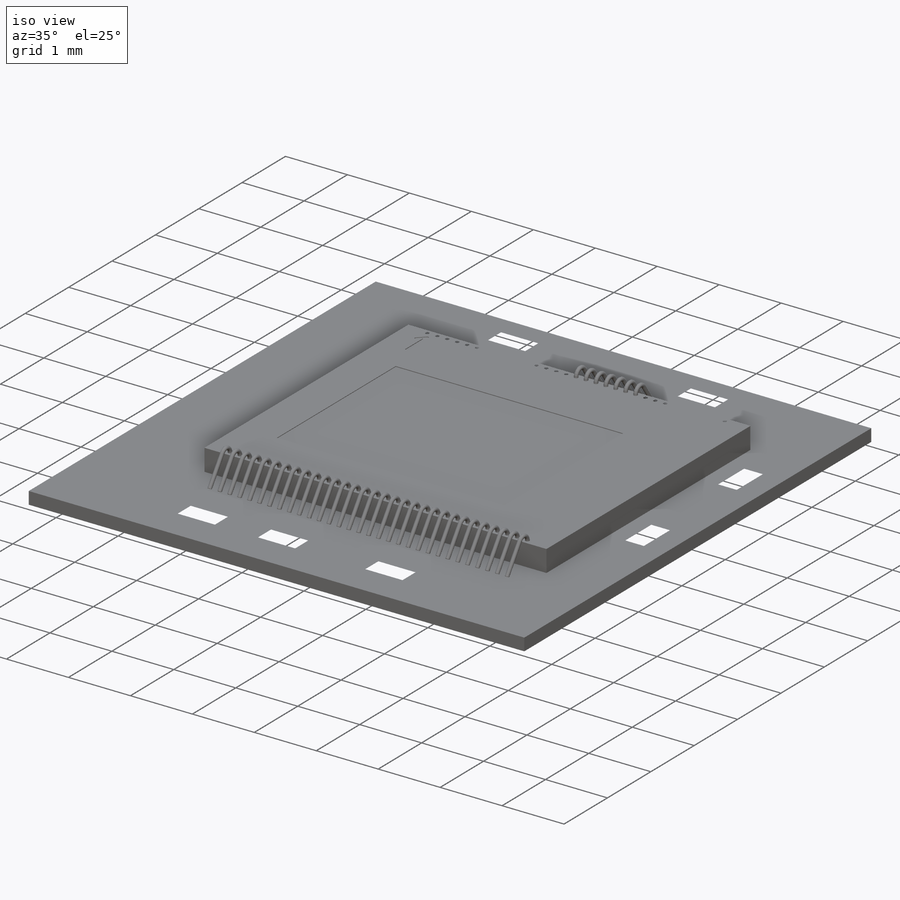
[diagram: iso view]
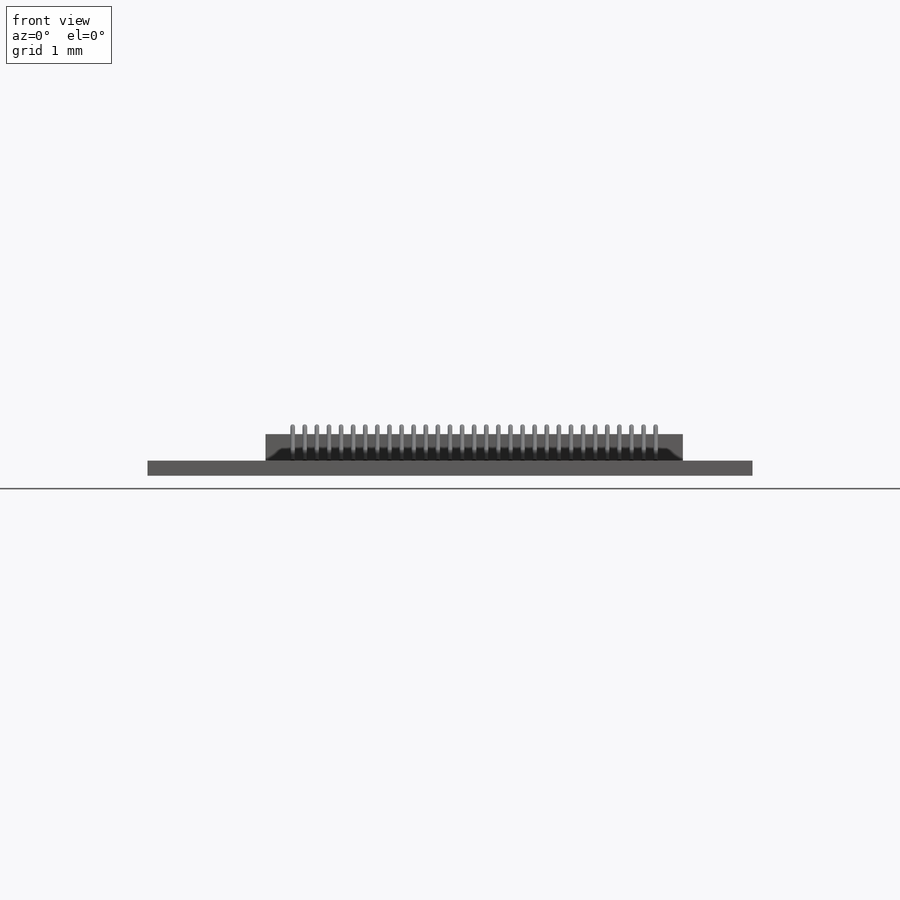
[diagram: front view]
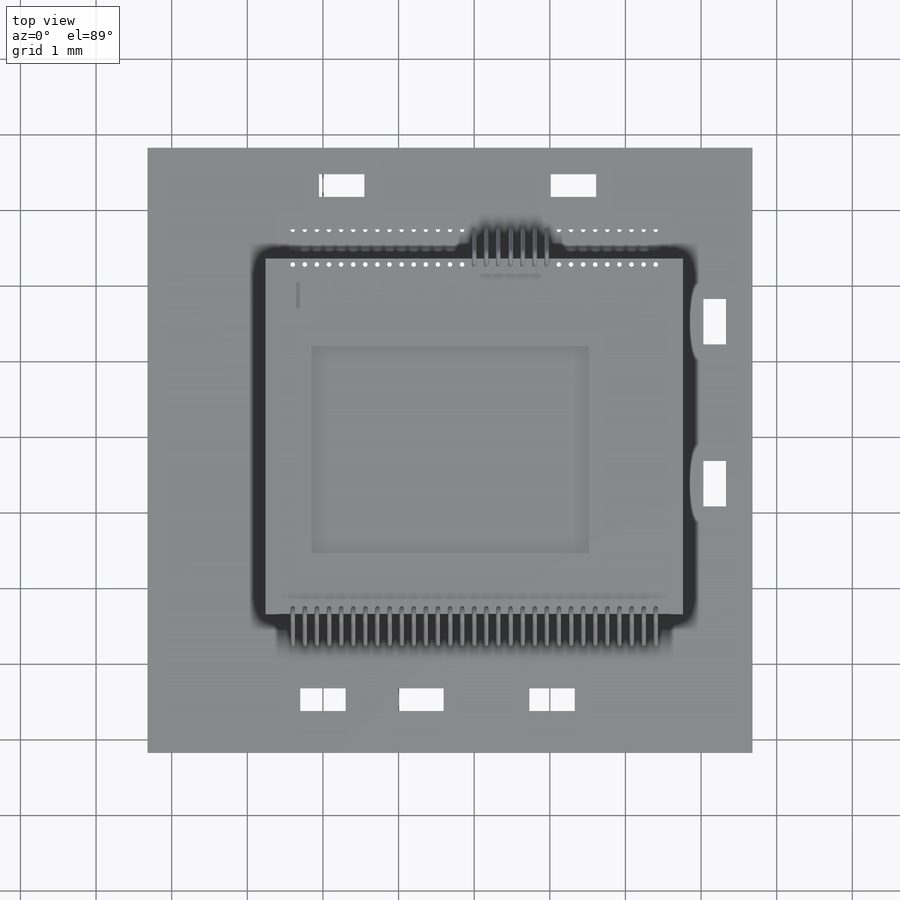
[diagram: top view]
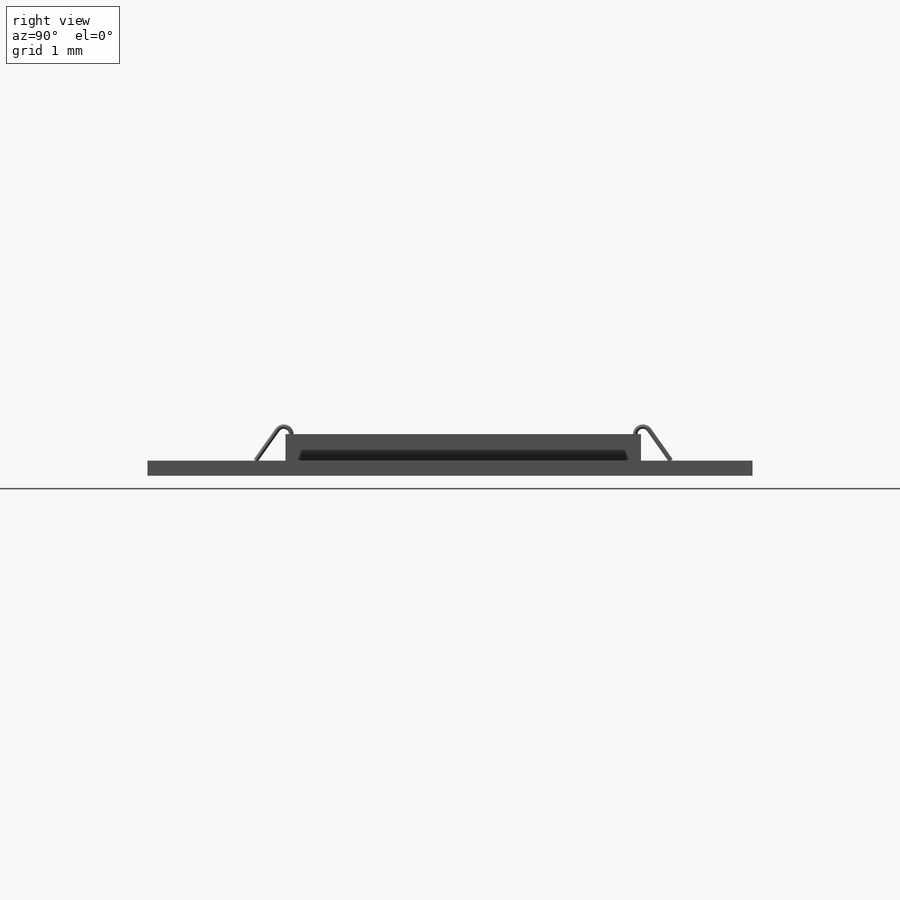
[diagram: right view]
SOLIDWORKS PART (.sldprt)
format: sldprt  version: not decoded by parser v0  size: 737,792 bytes
history: native  units: mm
features: sketch x7, plane x5, extrude x3, cut_extrude x2, material x1, sweep x1, mirror x1 (+10 scaffold rows collapsed)
feature tree (30):
  scaffold x10  (default folders/planes/origin — collapsed)
  material  "1060 Legierung"
  plane  "Vorne"
  plane  "Oben"
  plane  "Rechts"
  plane  "Faser-Ebene_Vorne"  Offset=0.175mm
  plane  "Faser-Ebene_Rechts"  Offset=0.32mm
  sketch  "Skizze1"  dims[c1.D1=~23.364557mm c1.D2=~42.348259mm c2.D1=5.52mm c2.D2=4.7mm]
  extrude  "Chip_Die"  Depth=0.35mm
  sketch  "Skizze4"  dims[c1.D1=~1.401285mm c1.D2=~2.217057mm c2.D1=3.67mm c2.D2=2.74mm c2.D3=0.32mm c2.D4=0.175mm c3.D3=~0.741575mm]
  cut_extrude  "Active_Area"  Depth=0.01mm
  sketch  "Skizze5"
  cut_extrude  "Pin1"  Depth=0.01mm
  sketch  "Skizze6"  dims[c1.D1=~8.238732mm c1.D2=~9.606731mm c2.D1=8.0mm c2.D2=~11.313708mm]
  extrude  "Base-Plate"  Depth=0.2mm
  sketch  "Skizze12"  dims[D1=~0.312949mm D2=~1.119648mm]
  sketch  "Skizze13"  dims[D1=0.06mm D3=~1.147269mm D2=16.0]
  sweep  "Bonding-wires"
  mirror  "Spiegeln1"
  sketch  "Skizze14"  dims[c1.D1=~0.365853mm c1.D2=~0.580948mm c2.D1=0.3mm c2.D2=0.6mm c2.D3=0.55mm c2.D4=~0.369127mm c2.D5=~0.75949mm c3.D4=~0.364167mm c3.D5=~0.63029mm c4.D4=~0.767556mm c4.D5=~0.334258mm c5.D4=0.35mm c5.D5=~0.668516mm c5.D6=0.3mm c6.D5=~0.310537mm c6.D6=~0.604288mm c7.D5=0.35mm c7.D6=~0.40898mm c7.D7=~1.364222mm]
  extrude  "Electronic_components"  Depth=0.3mm
decode coverage: 11 of 14 modeling features carry decoded parameters
note: ~ marks probable driven/reference dimensions
note: suppression state not decoded; provenance and decode notes live in map.json
